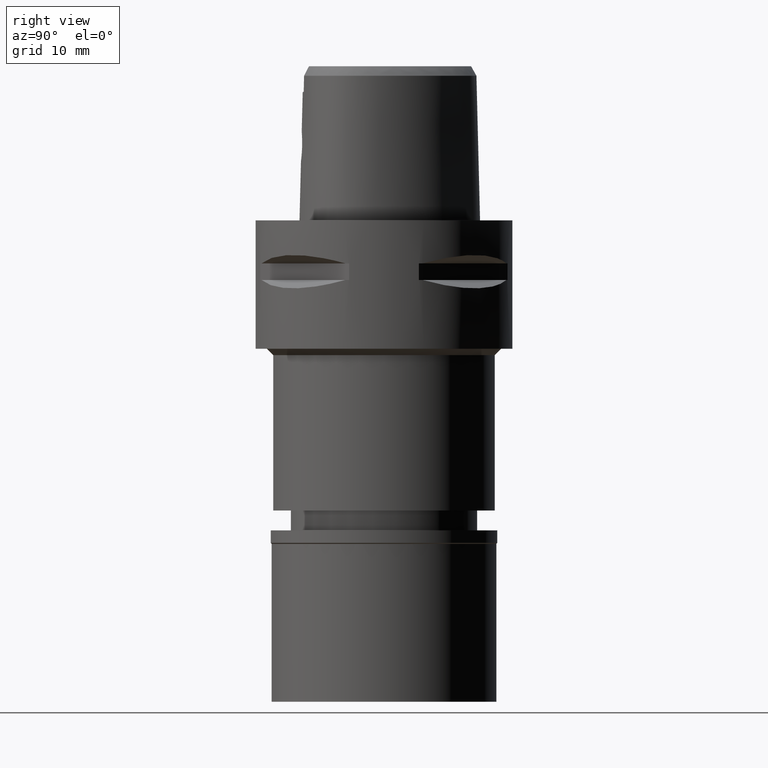
[diagram: clean part render]
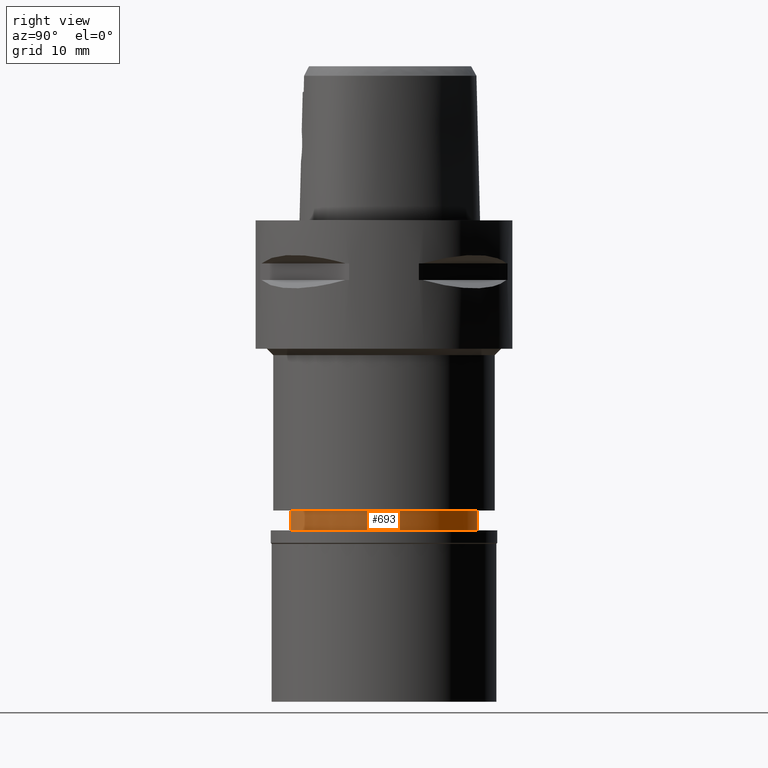
[diagram: same view with one face highlighted and labeled with its STEP entity id]
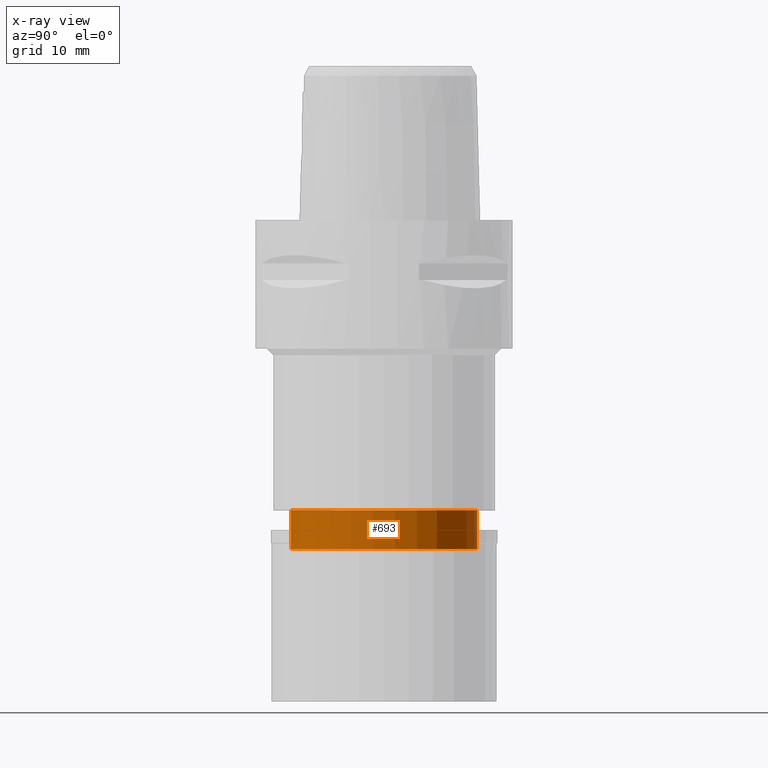
[diagram: x-ray of the same camera — body ghosted, the highlighted face saturated]
A machine part, right view. The second image highlights one B-rep face of the part: STEP entity #693.
The next image is the same camera in x-ray: the body ghosted, the highlighted face saturated — about 0% of this face is hidden behind the body in this view.
In plain terms, the highlighted cylindrical surface (partial cylindrical patch) has radius 14.5 mm, axis along (0, 0, -1).
Its self-contained STEP definition (entity closure, byte-faithful):
#38 = EDGE_CURVE ( 'NONE', #708, #3365, #3724, .T. ) ;
#567 = VECTOR ( 'NONE', #4429, 1000.000000000000000 ) ;
#623 = EDGE_CURVE ( 'NONE', #2744, #2845, #3127, .T. ) ;
#692 = DIRECTION ( 'NONE',  ( 0.0000000000000000000, 0.0000000000000000000, 1.000000000000000000 ) ) ;
#693 = ADVANCED_FACE ( 'NONE', ( #1023 ), #3981, .T. ) ;
#708 = VERTEX_POINT ( 'NONE', #3625 ) ;
#1023 = FACE_OUTER_BOUND ( 'NONE', #3557, .T. ) ;
#1029 = ORIENTED_EDGE ( 'NONE', *, *, #3416, .T. ) ;
#1036 = EDGE_CURVE ( 'NONE', #2744, #708, #1177, .T. ) ;
#1113 = AXIS2_PLACEMENT_3D ( 'NONE', #4662, #1359, #2115 ) ;
#1177 = CIRCLE ( 'NONE', #1638, 14.50000000000000000 ) ;
#1359 = DIRECTION ( 'NONE',  ( 0.0000000000000000000, 0.0000000000000000000, -1.000000000000000000 ) ) ;
#1638 = AXIS2_PLACEMENT_3D ( 'NONE', #2917, #4395, #2251 ) ;
#1731 = AXIS2_PLACEMENT_3D ( 'NONE', #2036, #692, #3199 ) ;
#2036 = CARTESIAN_POINT ( 'NONE',  ( 0.0000000000000000000, 1.263835496719999960E-14, -51.20000000000000284 ) ) ;
#2115 = DIRECTION ( 'NONE',  ( 0.0000000000000000000, -1.000000000000000000, 0.0000000000000000000 ) ) ;
#2147 = ORIENTED_EDGE ( 'NONE', *, *, #1036, .T. ) ;
#2251 = DIRECTION ( 'NONE',  ( 0.0000000000000000000, 1.000000000000000000, 0.0000000000000000000 ) ) ;
#2744 = VERTEX_POINT ( 'NONE', #4009 ) ;
#2845 = VERTEX_POINT ( 'NONE', #4639 ) ;
#2917 = CARTESIAN_POINT ( 'NONE',  ( 0.0000000000000000000, 1.263835496719999960E-14, -45.19999999999999574 ) ) ;
#2970 = CARTESIAN_POINT ( 'NONE',  ( 0.0000000000000000000, -14.50000000000000000, -45.19999999999999574 ) ) ;
#3102 = CIRCLE ( 'NONE', #1731, 14.50000000000000000 ) ;
#3127 = LINE ( 'NONE', #4589, #3345 ) ;
#3199 = DIRECTION ( 'NONE',  ( 0.0000000000000000000, -1.000000000000000000, 0.0000000000000000000 ) ) ;
#3345 = VECTOR ( 'NONE', #3415, 1000.000000000000000 ) ;
#3365 = VERTEX_POINT ( 'NONE', #4536 ) ;
#3415 = DIRECTION ( 'NONE',  ( 0.0000000000000000000, 0.0000000000000000000, -1.000000000000000000 ) ) ;
#3416 = EDGE_CURVE ( 'NONE', #3365, #2845, #3102, .T. ) ;
#3557 = EDGE_LOOP ( 'NONE', ( #2147, #4432, #1029, #3564 ) ) ;
#3564 = ORIENTED_EDGE ( 'NONE', *, *, #623, .F. ) ;
#3625 = CARTESIAN_POINT ( 'NONE',  ( 0.0000000000000000000, -14.50000000000000000, -45.19999999999999574 ) ) ;
#3724 = LINE ( 'NONE', #2970, #567 ) ;
#3981 = CYLINDRICAL_SURFACE ( 'NONE', #1113, 14.50000000000000000 ) ;
#4009 = CARTESIAN_POINT ( 'NONE',  ( 0.0000000000000000000, 14.50000000000000000, -45.19999999999999574 ) ) ;
#4395 = DIRECTION ( 'NONE',  ( 0.0000000000000000000, 0.0000000000000000000, -1.000000000000000000 ) ) ;
#4429 = DIRECTION ( 'NONE',  ( 0.0000000000000000000, 0.0000000000000000000, -1.000000000000000000 ) ) ;
#4432 = ORIENTED_EDGE ( 'NONE', *, *, #38, .T. ) ;
#4536 = CARTESIAN_POINT ( 'NONE',  ( 0.0000000000000000000, -14.50000000000000000, -51.20000000000000284 ) ) ;
#4589 = CARTESIAN_POINT ( 'NONE',  ( 0.0000000000000000000, 14.50000000000000000, -45.19999999999999574 ) ) ;
#4639 = CARTESIAN_POINT ( 'NONE',  ( 0.0000000000000000000, 14.50000000000000000, -51.20000000000000284 ) ) ;
#4662 = CARTESIAN_POINT ( 'NONE',  ( 0.0000000000000000000, 1.263835496719999960E-14, 3.200000000000000178 ) ) ;